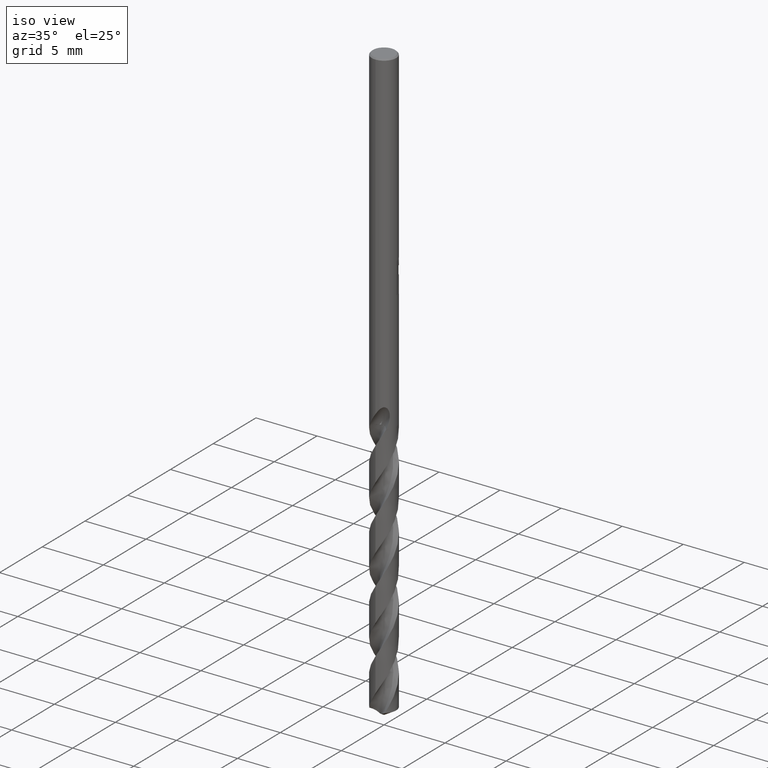
[diagram: clean part render]
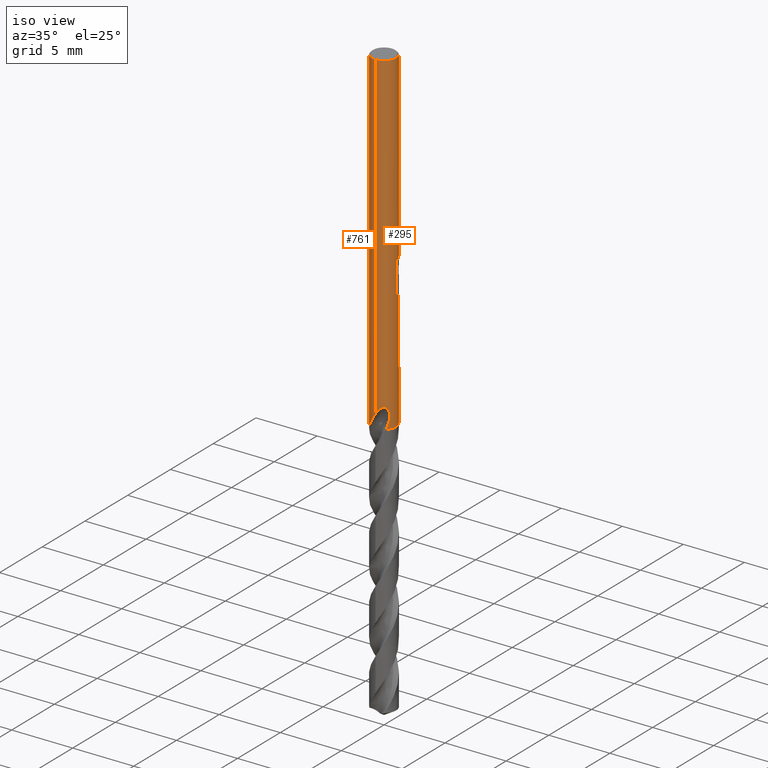
[diagram: same view with one multi-face feature highlighted, each face labeled with its STEP entity id]
A machine part, iso view. The highlighted faces form ONE feature: a constant-radius fillet chain: 2 tangent blend faces with common blend radius 1 mm. The faces share edges in the B-rep.
Their STEP definitions:
[1] entity #761 (Cylinder):
#303=EDGE_CURVE('',#657,#745,#836,.T.);
#327=EDGE_CURVE('',#709,#423,#862,.T.);
#353=EDGE_CURVE('',#673,#607,#891,.T.);
#355=EDGE_CURVE('',#699,#605,#893,.T.);
#409=VERTEX_POINT('',#953);
#423=VERTEX_POINT('',#967);
#431=VERTEX_POINT('',#975);
#455=EDGE_CURVE('',#643,#549,#1001,.T.);
#463=EDGE_CURVE('',#651,#609,#1010,.T.);
#471=VERTEX_POINT('',#1018);
#475=EDGE_CURVE('',#409,#699,#1022,.T.);
#481=VERTEX_POINT('',#1028);
#509=EDGE_CURVE('',#605,#725,#1058,.T.);
#527=EDGE_CURVE('',#409,#609,#1078,.T.);
#533=EDGE_CURVE('',#549,#673,#1085,.T.);
#549=VERTEX_POINT('',#1102);
#605=VERTEX_POINT('',#1162);
#607=VERTEX_POINT('',#1164);
#609=VERTEX_POINT('',#1166);
#643=VERTEX_POINT('',#1200);
#651=VERTEX_POINT('',#1208);
#657=VERTEX_POINT('',#1214);
#673=VERTEX_POINT('',#1233);
#685=EDGE_CURVE('',#431,#481,#1246,.T.);
#687=EDGE_CURVE('',#471,#657,#1248,.T.);
#699=VERTEX_POINT('',#1261);
#709=VERTEX_POINT('',#1273);
#725=VERTEX_POINT('',#1294);
#745=VERTEX_POINT('',#1317);
#747=EDGE_CURVE('',#745,#643,#1319,.T.);
#751=EDGE_CURVE('',#607,#651,#1324,.T.);
#761=ADVANCED_FACE('',(#1334),#1335,.T.);
#775=EDGE_CURVE('',#423,#471,#1350,.T.);
#781=EDGE_CURVE('',#481,#709,#1357,.T.);
#789=EDGE_CURVE('',#725,#431,#1365,.T.);
#836=LINE('',#1412,#1413);
#862=CIRCLE('',#2024,1.0);
#891=LINE('',#2280,#2281);
#893=LINE('',#2284,#2285);
#953=CARTESIAN_POINT('',(-0.634841489332144,-0.772642403329344,-27.4));
#967=CARTESIAN_POINT('',(-1.0,0.0,-15.3171221986971));
#975=CARTESIAN_POINT('',(5.06214303679778E-017,1.0,-16.0232688117743));
#1001=LINE('',#2970,#2971);
#1010=B_SPLINE_CURVE_WITH_KNOTS('',3,(#3142,#3143,#3144,#3145),.UNSPECIFIED.,.F.,.F.,(4,4),(0.0,0.56945863506427),.UNSPECIFIED.);
#1018=CARTESIAN_POINT('',(-1.0,0.0,-15.6123787413622));
#1022=B_SPLINE_CURVE_WITH_KNOTS('',3,(#3181,#3182,#3183,#3184,#3185,#3186,#3187,#3188,#3189,#3190,#3191,#3192,#3193,#3194,#3195,#3196,#3197,#3198,#3199,#3200,#3201,#3202,#3203,#3204,#3205,#3206,#3207,#3208),.UNSPECIFIED.,.F.,.F.,(4,2,2,2,2,2,2,2,2,2,2,2,2,4),(0.0,0.486315119149955,0.753502227558083,0.996053073942909,1.27815984182243,1.61675895999867,1.90796937706702,2.04078048043294,2.13789516683883,2.22982424761421,2.34648706572778,2.51720800066213,2.75988064639899,3.035387325814),.UNSPECIFIED.);
#1028=CARTESIAN_POINT('',(-0.486378944383072,0.873747974224136,-15.6432837483005));
#1058=CIRCLE('',#3709,1.0);
#1078=CIRCLE('',#3745,1.0);
#1085=B_SPLINE_CURVE_WITH_KNOTS('',3,(#3753,#3754,#3755,#3756,#3757,#3758,#3759,#3760,#3761,#3762,#3763,#3764,#3765,#3766,#3767,#3768,#3769),.UNSPECIFIED.,.F.,.F.,(4,3,2,2,2,2,2,4),(-0.19504411259458,0.0,0.19504411259458,0.39008822518916,0.780176450378319,1.166317916099,1.55245938181969,1.94231222037545),.UNSPECIFIED.);
#1102=CARTESIAN_POINT('',(-1.0,0.0,-17.7096916079355));
#1162=CARTESIAN_POINT('',(1.22460635382238E-016,-1.0,-0.100000000000001));
#1164=CARTESIAN_POINT('',(-3.65102560814443E-013,0.999999999999999,-26.3420152279177));
#1166=CARTESIAN_POINT('',(-0.696395247789617,0.717658455573428,-27.4));
#1200=CARTESIAN_POINT('',(-1.0,0.0,-17.2059077749364));
#1208=CARTESIAN_POINT('',(-0.813642163312234,0.581366003547324,-26.8574197756242));
#1214=CARTESIAN_POINT('',(0.0,1.0,-16.5000801551881));
#1233=CARTESIAN_POINT('',(1.0146208194845E-016,1.0,-18.0310253601033));
#1246=B_SPLINE_CURVE_WITH_KNOTS('',3,(#5876,#5877,#5878,#5879,#5880,#5881,#5882,#5883,#5884,#5885,#5886,#5887,#5888,#5889,#5890,#5891,#5892,#5893,#5894,#5895,#5896,#5897,#5898,#5899,#5900,#5901,#5902,#5903,#5904,#5905,#5906),.UNSPECIFIED.,.F.,.F.,(4,2,2,3,2,2,2,2,2,2,2,2,2,2,4),(-0.607233525241759,-0.303616762620879,-0.151808381310439,0.0,0.15180838131044,0.30361676262088,0.607233525241759,0.912218572818199,1.21720362039464,1.4895999723445,1.76199632429436,2.04336921409699,2.32474210389963,2.60611499370226,2.88748788350489),.UNSPECIFIED.);
#1248=B_SPLINE_CURVE_WITH_KNOTS('',3,(#5909,#5910,#5911,#5912,#5913,#5914,#5915,#5916,#5917,#5918,#5919,#5920,#5921,#5922,#5923,#5924,#5925,#5926,#5927,#5928,#5929,#5930,#5931),.UNSPECIFIED.,.F.,.F.,(4,3,2,2,2,2,2,2,2,2,4),(-0.137157507978025,0.0,0.137157507978026,0.274315015956052,0.548630031912103,0.964173413406938,1.37971679490177,1.68730627921483,1.99489576352788,2.33088352547496,2.66687128742204),.UNSPECIFIED.);
#1261=CARTESIAN_POINT('',(3.65546650024293E-013,-1.0,-26.3420152279177));
#1273=CARTESIAN_POINT('',(-0.562333990228013,0.82691020276342,-15.3171221986971));
#1294=CARTESIAN_POINT('',(0.0,1.0,-0.100000000000001));
#1317=CARTESIAN_POINT('',(1.19728058785816E-015,1.0,-16.7128911336578));
#1319=ELLIPSE('',#7149,1.11492843204286,1.0);
#1324=B_SPLINE_CURVE_WITH_KNOTS('',3,(#7155,#7156,#7157,#7158,#7159,#7160,#7161,#7162,#7163,#7164,#7165,#7166,#7167,#7168,#7169,#7170,#7171,#7172,#7173,#7174,#7175,#7176,#7177,#7178,#7179,#7180,#7181,#7182),.UNSPECIFIED.,.F.,.F.,(4,2,2,2,2,2,2,2,2,2,2,2,2,4),(0.0,0.486315119149953,0.753502227558069,0.996053073942924,1.27815984182254,1.61675895999886,1.90796937706729,2.04078048043324,2.13789516683916,2.22982424761455,2.34648706572807,2.51720800066145,2.75988064639575,3.03538732580812),.UNSPECIFIED.);
#1334=FACE_OUTER_BOUND('',#7562,.T.);
#1335=CYLINDRICAL_SURFACE('',#7563,1.0);
#1350=LINE('',#7775,#7776);
#1357=B_SPLINE_CURVE_WITH_KNOTS('',3,(#7946,#7947,#7948,#7949,#7950,#7951,#7952,#7953,#7954,#7955,#7956,#7957,#7958,#7959,#7960,#7961,#7962,#7963,#7964,#7965,#7966,#7967,#7968,#7969,#7970,#7971,#7972,#7973,#7974,#7975,#7976),.UNSPECIFIED.,.F.,.F.,(4,2,2,3,2,2,2,2,2,2,2,2,2,2,4),(-0.607233525241759,-0.303616762620879,-0.151808381310439,0.0,0.15180838131044,0.30361676262088,0.607233525241759,0.912218572818199,1.21720362039464,1.4895999723445,1.76199632429436,2.04336921409699,2.32474210389963,2.60611499370226,2.88748788350489),.UNSPECIFIED.);
#1365=LINE('',#8195,#8196);
#1412=CARTESIAN_POINT('',(-1.22460635382238E-016,1.0,-23.7));
#1413=VECTOR('',#8419,1.0);
#2024=AXIS2_PLACEMENT_3D('',#8437,#8438,#8439);
#2280=CARTESIAN_POINT('',(-1.22460635382238E-016,1.0,-23.7));
#2281=VECTOR('',#8472,1.0);
#2284=CARTESIAN_POINT('',(1.22460635382238E-016,-1.0,-23.7));
#2285=VECTOR('',#8473,1.0);
#2970=CARTESIAN_POINT('',(-1.0,0.0,-17.4607460005526));
#2971=VECTOR('',#8577,1.0);
#3142=CARTESIAN_POINT('',(-0.813642163364853,0.581366003473684,-26.8574197756531));
#3143=CARTESIAN_POINT('',(-0.781698120610799,0.6260728144976,-27.0391127552994));
#3144=CARTESIAN_POINT('',(-0.743260976586601,0.672181292216746,-27.2218533031689));
#3145=CARTESIAN_POINT('',(-0.696395247789617,0.717658455573428,-27.4));
#3181=CARTESIAN_POINT('',(-0.634841489332145,-0.772642403329344,-27.4));
#3182=CARTESIAN_POINT('',(-0.569063042017873,-0.826689252530226,-27.2620500893008));
#3183=CARTESIAN_POINT('',(-0.49362829051234,-0.874633404089495,-27.1332556092569));
#3184=CARTESIAN_POINT('',(-0.362092801182732,-0.933541954259275,-26.9178770775166));
#3185=CARTESIAN_POINT('',(-0.314580386880739,-0.950550046193102,-26.8417865859912));
#3186=CARTESIAN_POINT('',(-0.222521761345376,-0.975986377041126,-26.6943596287175));
#3187=CARTESIAN_POINT('',(-0.178375337692277,-0.984973036864506,-26.6236925386448));
#3188=CARTESIAN_POINT('',(-0.0827625185949405,-0.997918774791236,-26.4713148020854));
#3189=CARTESIAN_POINT('',(-0.0304842963187713,-1.00092673578298,-26.3883933091746));
#3190=CARTESIAN_POINT('',(0.0855723170221471,-0.998342364501833,-26.2111323335177));
#3191=CARTESIAN_POINT('',(0.154409605646612,-0.990700443091022,-26.1102704916496));
#3192=CARTESIAN_POINT('',(0.286703096553658,-0.960074782067612,-25.9447567655431));
#3193=CARTESIAN_POINT('',(0.359504089173723,-0.936937353257582,-25.8644634701456));
#3194=CARTESIAN_POINT('',(0.469917831565921,-0.883545652625182,-25.7889707559942));
#3195=CARTESIAN_POINT('',(0.50662148531637,-0.863304491822586,-25.7702412765686));
#3196=CARTESIAN_POINT('',(0.57094354101037,-0.821627317932716,-25.7558724674693));
#3197=CARTESIAN_POINT('',(0.597329698140652,-0.802644509769649,-25.7556222950202));
#3198=CARTESIAN_POINT('',(0.646478662183727,-0.763543132494086,-25.7682722977457));
#3199=CARTESIAN_POINT('',(0.667975306297854,-0.744656659894225,-25.7801191841257));
#3200=CARTESIAN_POINT('',(0.711726031081877,-0.703264339849075,-25.8171744441095));
#3201=CARTESIAN_POINT('',(0.731967618640897,-0.681812491565128,-25.844531566887));
#3202=CARTESIAN_POINT('',(0.773429215520865,-0.634971026278083,-25.919440448554));
#3203=CARTESIAN_POINT('',(0.793244481378834,-0.609464356749814,-25.9750020342022));
#3204=CARTESIAN_POINT('',(0.830491892501607,-0.55826918115183,-26.1304348067894));
#3205=CARTESIAN_POINT('',(0.843947813018679,-0.53647839181785,-26.2411252191962));
#3206=CARTESIAN_POINT('',(0.852491490643161,-0.522811338154952,-26.5055324757326));
#3207=CARTESIAN_POINT('',(0.846359061382845,-0.535577554342156,-26.6713376298636));
#3208=CARTESIAN_POINT('',(0.813642163312233,-0.581366003547325,-26.8574197756242));
#3709=AXIS2_PLACEMENT_3D('',#8614,#8615,#8616);
#3745=AXIS2_PLACEMENT_3D('',#8646,#8647,#8648);
#3753=CARTESIAN_POINT('',(-0.980444819587482,-0.196794196418672,-17.7240035705323));
#3754=CARTESIAN_POINT('',(-0.993565563062151,-0.131425574063137,-17.7145499063757));
#3755=CARTESIAN_POINT('',(-1.0,-0.0650147041981933,-17.7096916079355));
#3756=CARTESIAN_POINT('',(-1.0,0.0,-17.7096916079355));
#3757=CARTESIAN_POINT('',(-1.0,0.0650147041981933,-17.7096916079355));
#3758=CARTESIAN_POINT('',(-0.993565563062151,0.131425574063137,-17.7145499063757));
#3759=CARTESIAN_POINT('',(-0.967324076112812,0.262162818774206,-17.733457234689));
#3760=CARTESIAN_POINT('',(-0.947530815459635,0.326498668616294,-17.747459854512));
#3761=CARTESIAN_POINT('',(-0.870227269632897,0.510264153789291,-17.7981758412044));
#3762=CARTESIAN_POINT('',(-0.793890669672503,0.620514468200863,-17.8433674785199));
#3763=CARTESIAN_POINT('',(-0.619652273446457,0.794369949064209,-17.9231378507274));
#3764=CARTESIAN_POINT('',(-0.509393531502069,0.870757232476645,-17.9636894408171));
#3765=CARTESIAN_POINT('',(-0.264011144697287,0.973651943067932,-18.0190349224756));
#3766=CARTESIAN_POINT('',(-0.128694303528194,1.0,-18.0332668304406));
#3767=CARTESIAN_POINT('',(0.129931240206963,1.0,-18.0287623460241));
#3768=CARTESIAN_POINT('',(0.265840915073126,0.973193360312368,-18.0095124995587));
#3769=CARTESIAN_POINT('',(0.388686445156455,0.921370092499012,-17.9769707233872));
#5876=CARTESIAN_POINT('',(0.673478773298645,0.739206562414155,-14.8221013126891));
#5877=CARTESIAN_POINT('',(0.732898512196537,0.685070229084017,-14.8835921493418));
#5878=CARTESIAN_POINT('',(0.784035818772585,0.62377271486409,-14.9592044724041));
#5879=CARTESIAN_POINT('',(0.837072103961167,0.547961151775005,-15.0855800820537));
#5880=CARTESIAN_POINT('',(0.850964192131077,0.525559955949891,-15.1298681551343));
#5881=CARTESIAN_POINT('',(0.870113898944855,0.493209009232316,-15.2225766796322));
#5882=CARTESIAN_POINT('',(0.875400981188567,0.483397478410981,-15.2710392188166));
#5883=CARTESIAN_POINT('',(0.875400981188567,0.483397478410981,-15.3216420125868));
#5884=CARTESIAN_POINT('',(0.875400981188567,0.483397478410981,-15.3722448063569));
#5885=CARTESIAN_POINT('',(0.870113898944855,0.493209009232316,-15.4207073455414));
#5886=CARTESIAN_POINT('',(0.850964192131077,0.52555995594989,-15.5134158700393));
#5887=CARTESIAN_POINT('',(0.837072103961168,0.547961151775003,-15.5577039431199));
#5888=CARTESIAN_POINT('',(0.784035818772587,0.623772714864088,-15.6840795527694));
#5889=CARTESIAN_POINT('',(0.732898512196537,0.685070229084017,-15.7596918758318));
#5890=CARTESIAN_POINT('',(0.613791252299082,0.79358686755206,-15.8829506648866));
#5891=CARTESIAN_POINT('',(0.536550060182283,0.849736898708803,-15.9395969520149));
#5892=CARTESIAN_POINT('',(0.358230432856478,0.93894078865622,-16.0184933615078));
#5893=CARTESIAN_POINT('',(0.256934968912869,0.97176104029934,-16.0405166027747));
#5894=CARTESIAN_POINT('',(0.0668468131160956,1.00188618253226,-16.0405166027747));
#5895=CARTESIAN_POINT('',(-0.0291729907235004,1.00347676559166,-16.0225778316884));
#5896=CARTESIAN_POINT('',(-0.204783002825692,0.982792247679803,-15.9503317442107));
#5897=CARTESIAN_POINT('',(-0.284466038399353,0.961010291643699,-15.8961097710298));
#5898=CARTESIAN_POINT('',(-0.411816290198985,0.913875241964301,-15.7710754747411));
#5899=CARTESIAN_POINT('',(-0.467748305765433,0.88493728473904,-15.6909252580766));
#5900=CARTESIAN_POINT('',(-0.543025225108172,0.840848585319699,-15.5132567961665));
#5901=CARTESIAN_POINT('',(-0.562348199187247,0.826900539890295,-15.4154329758543));
#5902=CARTESIAN_POINT('',(-0.562348199187247,0.826900539890295,-15.2278510493192));
#5903=CARTESIAN_POINT('',(-0.543025225108173,0.840848585319698,-15.1300272290071));
#5904=CARTESIAN_POINT('',(-0.467748305765435,0.88493728473904,-14.952358767097));
#5905=CARTESIAN_POINT('',(-0.411816290198985,0.913875241964301,-14.8722085504325));
#5906=CARTESIAN_POINT('',(-0.34710899758635,0.937824793761926,-14.808678006266));
#5909=CARTESIAN_POINT('',(-0.991868233804212,-0.127269033036765,-15.6432304080176));
#5910=CARTESIAN_POINT('',(-0.996991542825211,-0.0873405548822711,-15.6248045831465));
#5911=CARTESIAN_POINT('',(-1.0,-0.0457191693260084,-15.6123787413622));
#5912=CARTESIAN_POINT('',(-1.0,0.0,-15.6123787413622));
#5913=CARTESIAN_POINT('',(-1.0,0.0457191693260086,-15.6123787413622));
#5914=CARTESIAN_POINT('',(-0.996991542825211,0.0873405548822711,-15.6248045831465));
#5915=CARTESIAN_POINT('',(-0.986744924783327,0.167197511190992,-15.6616562328894));
#5916=CARTESIAN_POINT('',(-0.979434144534593,0.205415348052975,-15.6861002379071));
#5917=CARTESIAN_POINT('',(-0.951341400725161,0.317646868302498,-15.7672870426517));
#5918=CARTESIAN_POINT('',(-0.924020105583603,0.388742546209082,-15.8312206041969));
#5919=CARTESIAN_POINT('',(-0.844278031743052,0.546366797465065,-15.9784418218004));
#5920=CARTESIAN_POINT('',(-0.776369883975864,0.641646115756596,-16.0749473668852));
#5921=CARTESIAN_POINT('',(-0.602121978922889,0.807408812091898,-16.2494661213731));
#5922=CARTESIAN_POINT('',(-0.495571162281771,0.877632351185902,-16.3275152387594));
#5923=CARTESIAN_POINT('',(-0.292974692954151,0.960645039763194,-16.4283413922073));
#5924=CARTESIAN_POINT('',(-0.190761951173311,0.987423878945487,-16.4650225267122));
#5925=CARTESIAN_POINT('',(0.0219808973918171,1.00544163480209,-16.507634003032));
#5926=CARTESIAN_POINT('',(0.132551011445553,0.996439830889215,-16.5134659835241));
#5927=CARTESIAN_POINT('',(0.340721948365817,0.94677963278928,-16.498632823894));
#5928=CARTESIAN_POINT('',(0.449793780127788,0.900432097113985,-16.4747387783549));
#5929=CARTESIAN_POINT('',(0.641563561285496,0.775556910410664,-16.4062859546221));
#5930=CARTESIAN_POINT('',(0.724482186930116,0.697113908182539,-16.3621919706298));
#5931=CARTESIAN_POINT('',(0.788520594587301,0.615008351091015,-16.3209506554054));
#7149=AXIS2_PLACEMENT_3D('',#8930,#8931,#8932);
#7155=CARTESIAN_POINT('',(0.634841489332145,0.772642403329344,-27.4));
#7156=CARTESIAN_POINT('',(0.569063042017873,0.826689252530226,-27.2620500893008));
#7157=CARTESIAN_POINT('',(0.493628290512342,0.874633404089495,-27.1332556092569));
#7158=CARTESIAN_POINT('',(0.362092801182733,0.933541954259275,-26.9178770775166));
#7159=CARTESIAN_POINT('',(0.314580386880741,0.950550046193102,-26.8417865859912));
#7160=CARTESIAN_POINT('',(0.222521761345367,0.975986377041129,-26.6943596287174));
#7161=CARTESIAN_POINT('',(0.178375337692258,0.984973036864508,-26.6236925386447));
#7162=CARTESIAN_POINT('',(0.0827625185949509,0.997918774791234,-26.4713148020854));
#7163=CARTESIAN_POINT('',(0.0304842963187761,1.00092673578298,-26.3883933091746));
#7164=CARTESIAN_POINT('',(-0.0855723170221472,0.998342364501833,-26.2111323335177));
#7165=CARTESIAN_POINT('',(-0.154409605646612,0.990700443091022,-26.1102704916496));
#7166=CARTESIAN_POINT('',(-0.286703096553659,0.960074782067612,-25.9447567655431));
#7167=CARTESIAN_POINT('',(-0.359504089173723,0.936937353257582,-25.8644634701456));
#7168=CARTESIAN_POINT('',(-0.469917831565922,0.883545652625182,-25.7889707559942));
#7169=CARTESIAN_POINT('',(-0.50662148531637,0.863304491822586,-25.7702412765686));
#7170=CARTESIAN_POINT('',(-0.570943541010371,0.821627317932715,-25.7558724674693));
#7171=CARTESIAN_POINT('',(-0.597329698140652,0.802644509769648,-25.7556222950202));
#7172=CARTESIAN_POINT('',(-0.64647866218372,0.763543132494091,-25.7682722977457));
#7173=CARTESIAN_POINT('',(-0.667975306297842,0.744656659894236,-25.7801191841257));
#7174=CARTESIAN_POINT('',(-0.711726031081881,0.70326433984907,-25.8171744441095));
#7175=CARTESIAN_POINT('',(-0.731967618640905,0.68181249156512,-25.844531566887));
#7176=CARTESIAN_POINT('',(-0.773429215520723,0.634971026278244,-25.9194404485537));
#7177=CARTESIAN_POINT('',(-0.793244481378741,0.609464356749943,-25.9750020342018));
#7178=CARTESIAN_POINT('',(-0.830491892501633,0.558269181151796,-26.1304348067895));
#7179=CARTESIAN_POINT('',(-0.843947813018682,0.536478391817844,-26.2411252191964));
#7180=CARTESIAN_POINT('',(-0.852491490643161,0.522811338154951,-26.5055324757326));
#7181=CARTESIAN_POINT('',(-0.846359061382845,0.535577554342156,-26.6713376298636));
#7182=CARTESIAN_POINT('',(-0.813642163312233,0.581366003547325,-26.8574197756242));
#7562=EDGE_LOOP('',(#8941,#8942,#8943,#8944,#8945,#8946,#8947,#8948,#8949,#8950,#8951,#8952,#8953,#8954,#8955,#8956,#8957));
#7563=AXIS2_PLACEMENT_3D('',#8958,#8959,#8960);
#7775=CARTESIAN_POINT('',(-1.0,0.0,-15.5078657761205));
#7776=VECTOR('',#8975,1.0);
#7946=CARTESIAN_POINT('',(0.673478773298645,0.739206562414155,-14.8221013126891));
#7947=CARTESIAN_POINT('',(0.732898512196537,0.685070229084017,-14.8835921493418));
#7948=CARTESIAN_POINT('',(0.784035818772585,0.62377271486409,-14.9592044724041));
#7949=CARTESIAN_POINT('',(0.837072103961167,0.547961151775005,-15.0855800820537));
#7950=CARTESIAN_POINT('',(0.850964192131077,0.525559955949891,-15.1298681551343));
#7951=CARTESIAN_POINT('',(0.870113898944855,0.493209009232316,-15.2225766796322));
#7952=CARTESIAN_POINT('',(0.875400981188567,0.483397478410981,-15.2710392188166));
#7953=CARTESIAN_POINT('',(0.875400981188567,0.483397478410981,-15.3216420125868));
#7954=CARTESIAN_POINT('',(0.875400981188567,0.483397478410981,-15.3722448063569));
#7955=CARTESIAN_POINT('',(0.870113898944855,0.493209009232316,-15.4207073455414));
#7956=CARTESIAN_POINT('',(0.850964192131077,0.52555995594989,-15.5134158700393));
#7957=CARTESIAN_POINT('',(0.837072103961168,0.547961151775003,-15.5577039431199));
#7958=CARTESIAN_POINT('',(0.784035818772587,0.623772714864088,-15.6840795527694));
#7959=CARTESIAN_POINT('',(0.732898512196537,0.685070229084017,-15.7596918758318));
#7960=CARTESIAN_POINT('',(0.613791252299082,0.79358686755206,-15.8829506648866));
#7961=CARTESIAN_POINT('',(0.536550060182283,0.849736898708803,-15.9395969520149));
#7962=CARTESIAN_POINT('',(0.358230432856478,0.93894078865622,-16.0184933615078));
#7963=CARTESIAN_POINT('',(0.256934968912869,0.97176104029934,-16.0405166027747));
#7964=CARTESIAN_POINT('',(0.0668468131160956,1.00188618253226,-16.0405166027747));
#7965=CARTESIAN_POINT('',(-0.0291729907235004,1.00347676559166,-16.0225778316884));
#7966=CARTESIAN_POINT('',(-0.204783002825692,0.982792247679803,-15.9503317442107));
#7967=CARTESIAN_POINT('',(-0.284466038399353,0.961010291643699,-15.8961097710298));
#7968=CARTESIAN_POINT('',(-0.411816290198985,0.913875241964301,-15.7710754747411));
#7969=CARTESIAN_POINT('',(-0.467748305765433,0.88493728473904,-15.6909252580766));
#7970=CARTESIAN_POINT('',(-0.543025225108172,0.840848585319699,-15.5132567961665));
#7971=CARTESIAN_POINT('',(-0.562348199187247,0.826900539890295,-15.4154329758543));
#7972=CARTESIAN_POINT('',(-0.562348199187247,0.826900539890295,-15.2278510493192));
#7973=CARTESIAN_POINT('',(-0.543025225108173,0.840848585319698,-15.1300272290071));
#7974=CARTESIAN_POINT('',(-0.467748305765435,0.88493728473904,-14.952358767097));
#7975=CARTESIAN_POINT('',(-0.411816290198985,0.913875241964301,-14.8722085504325));
#7976=CARTESIAN_POINT('',(-0.34710899758635,0.937824793761926,-14.808678006266));
#8195=CARTESIAN_POINT('',(-1.22460635382238E-016,1.0,-23.7));
#8196=VECTOR('',#8986,1.0);
#8419=DIRECTION('',(0.0,0.0,-1.0));
#8437=CARTESIAN_POINT('',(0.0,0.0,-15.3171221986971));
#8438=DIRECTION('',(0.0,-0.0,1.0));
#8439=DIRECTION('',(0.0,1.0,0.0));
#8472=DIRECTION('',(0.0,0.0,-1.0));
#8473=DIRECTION('',(-0.0,-0.0,1.0));
#8577=DIRECTION('',(0.0,0.0,-1.0));
#8614=CARTESIAN_POINT('',(0.0,0.0,-0.100000000000001));
#8615=DIRECTION('',(0.0,0.0,-1.0));
#8616=DIRECTION('',(0.0,1.0,0.0));
#8646=CARTESIAN_POINT('',(0.0,0.0,-27.4));
#8647=DIRECTION('',(0.0,0.0,-1.0));
#8648=DIRECTION('',(0.0,1.0,0.0));
#8930=CARTESIAN_POINT('',(0.0,0.0,-16.7128911336578));
#8931=DIRECTION('',(-0.442195774284071,0.0,0.896918556617774));
#8932=DIRECTION('',(0.896918556617774,-0.0,0.442195774284071));
#8941=ORIENTED_EDGE('',*,*,#789,.T.);
#8942=ORIENTED_EDGE('',*,*,#685,.T.);
#8943=ORIENTED_EDGE('',*,*,#781,.T.);
#8944=ORIENTED_EDGE('',*,*,#327,.T.);
#8945=ORIENTED_EDGE('',*,*,#775,.T.);
#8946=ORIENTED_EDGE('',*,*,#687,.T.);
#8947=ORIENTED_EDGE('',*,*,#303,.T.);
#8948=ORIENTED_EDGE('',*,*,#747,.T.);
#8949=ORIENTED_EDGE('',*,*,#455,.T.);
#8950=ORIENTED_EDGE('',*,*,#533,.T.);
#8951=ORIENTED_EDGE('',*,*,#353,.T.);
#8952=ORIENTED_EDGE('',*,*,#751,.T.);
#8953=ORIENTED_EDGE('',*,*,#463,.T.);
#8954=ORIENTED_EDGE('',*,*,#527,.F.);
#8955=ORIENTED_EDGE('',*,*,#475,.T.);
#8956=ORIENTED_EDGE('',*,*,#355,.T.);
#8957=ORIENTED_EDGE('',*,*,#509,.T.);
#8958=CARTESIAN_POINT('',(0.0,0.0,-23.7));
#8959=DIRECTION('',(-0.0,-0.0,1.0));
#8960=DIRECTION('',(0.0,1.0,0.0));
#8975=DIRECTION('',(0.0,0.0,-1.0));
#8986=DIRECTION('',(0.0,0.0,-1.0));
[2] entity #295 (Cylinder):
#295=ADVANCED_FACE('',(#826),#827,.T.);
#301=VERTEX_POINT('',#834);
#317=VERTEX_POINT('',#851);
#335=EDGE_CURVE('',#769,#607,#872,.T.);
#337=EDGE_CURVE('',#655,#301,#874,.T.);
#347=EDGE_CURVE('',#317,#431,#885,.T.);
#353=EDGE_CURVE('',#673,#607,#891,.T.);
#355=EDGE_CURVE('',#699,#605,#893,.T.);
#359=EDGE_CURVE('',#421,#655,#897,.T.);
#375=EDGE_CURVE('',#673,#421,#915,.T.);
#421=VERTEX_POINT('',#965);
#431=VERTEX_POINT('',#975);
#469=VERTEX_POINT('',#1016);
#477=EDGE_CURVE('',#699,#573,#1024,.T.);
#479=EDGE_CURVE('',#301,#469,#1026,.T.);
#501=EDGE_CURVE('',#573,#635,#1049,.T.);
#573=VERTEX_POINT('',#1128);
#595=EDGE_CURVE('',#659,#317,#1151,.T.);
#605=VERTEX_POINT('',#1162);
#607=VERTEX_POINT('',#1164);
#633=EDGE_CURVE('',#469,#659,#1190,.T.);
#635=VERTEX_POINT('',#1192);
#645=EDGE_CURVE('',#769,#635,#1202,.T.);
#655=VERTEX_POINT('',#1212);
#659=VERTEX_POINT('',#1216);
#673=VERTEX_POINT('',#1233);
#697=EDGE_CURVE('',#725,#605,#1259,.T.);
#699=VERTEX_POINT('',#1261);
#725=VERTEX_POINT('',#1294);
#769=VERTEX_POINT('',#1344);
#789=EDGE_CURVE('',#725,#431,#1365,.T.);
#826=FACE_OUTER_BOUND('',#1400,.T.);
#827=CYLINDRICAL_SURFACE('',#1401,1.0);
#834=CARTESIAN_POINT('',(0.873560781758956,0.486715071240538,-17.7587351791531));
#851=CARTESIAN_POINT('',(0.799431726384364,0.600756951562039,-15.000000276873));
#872=B_SPLINE_CURVE_WITH_KNOTS('',3,(#2036,#2037,#2038,#2039,#2040,#2041,#2042,#2043,#2044,#2045,#2046,#2047,#2048,#2049,#2050,#2051,#2052,#2053,#2054,#2055,#2056,#2057,#2058,#2059,#2060,#2061,#2062,#2063),.UNSPECIFIED.,.F.,.F.,(4,2,2,2,2,2,2,2,2,2,2,2,2,4),(0.0,0.486315119149953,0.753502227558069,0.996053073942924,1.27815984182254,1.61675895999886,1.90796937706729,2.04078048043324,2.13789516683916,2.22982424761455,2.34648706572807,2.51720800066145,2.75988064639575,3.03538732580812),.UNSPECIFIED.);
#874=LINE('',#2066,#2067);
#885=B_SPLINE_CURVE_WITH_KNOTS('',3,(#2081,#2082,#2083,#2084,#2085,#2086,#2087,#2088,#2089,#2090,#2091,#2092,#2093,#2094,#2095,#2096,#2097,#2098,#2099,#2100,#2101,#2102,#2103,#2104,#2105,#2106,#2107,#2108,#2109,#2110,#2111),.UNSPECIFIED.,.F.,.F.,(4,2,2,3,2,2,2,2,2,2,2,2,2,2,4),(-0.607233525241759,-0.303616762620879,-0.151808381310439,0.0,0.15180838131044,0.30361676262088,0.607233525241759,0.912218572818199,1.21720362039464,1.4895999723445,1.76199632429436,2.04336921409699,2.32474210389963,2.60611499370226,2.88748788350489),.UNSPECIFIED.);
#891=LINE('',#2280,#2281);
#893=LINE('',#2284,#2285);
#897=ELLIPSE('',#2291,3.04799457336977,1.0);
#915=B_SPLINE_CURVE_WITH_KNOTS('',3,(#2325,#2326,#2327,#2328,#2329,#2330,#2331,#2332,#2333,#2334,#2335,#2336,#2337,#2338,#2339,#2340,#2341),.UNSPECIFIED.,.F.,.F.,(4,3,2,2,2,2,2,4),(-0.19504411259458,0.0,0.19504411259458,0.39008822518916,0.780176450378319,1.166317916099,1.55245938181969,1.94231222037545),.UNSPECIFIED.);
#965=CARTESIAN_POINT('',(0.29010312703583,0.956995389583478,-17.9998328990228));
#975=CARTESIAN_POINT('',(5.06214303679778E-017,1.0,-16.0232688117743));
#1016=CARTESIAN_POINT('',(1.0,0.0,-17.6655479121829));
#1024=B_SPLINE_CURVE_WITH_KNOTS('',3,(#3211,#3212,#3213,#3214,#3215,#3216,#3217,#3218,#3219,#3220,#3221,#3222,#3223,#3224,#3225,#3226,#3227,#3228,#3229,#3230,#3231,#3232,#3233,#3234,#3235,#3236,#3237,#3238),.UNSPECIFIED.,.F.,.F.,(4,2,2,2,2,2,2,2,2,2,2,2,2,4),(0.0,0.486315119149955,0.753502227558083,0.996053073942909,1.27815984182243,1.61675895999867,1.90796937706702,2.04078048043294,2.13789516683883,2.22982424761421,2.34648706572778,2.51720800066213,2.75988064639899,3.035387325814),.UNSPECIFIED.);
#1026=B_SPLINE_CURVE_WITH_KNOTS('',3,(#3241,#3242,#3243,#3244,#3245,#3246,#3247,#3248,#3249,#3250),.UNSPECIFIED.,.F.,.F.,(4,2,2,2,4),(2.33216506919185,2.72360547369509,2.91932567594671,3.11504587819833,3.31076608044995),.UNSPECIFIED.);
#1049=B_SPLINE_CURVE_WITH_KNOTS('',3,(#3695,#3696,#3697,#3698),.UNSPECIFIED.,.F.,.F.,(4,4),(0.0,0.569458635064343),.UNSPECIFIED.);
#1128=CARTESIAN_POINT('',(0.813642163312234,-0.581366003547324,-26.8574197756242));
#1151=B_SPLINE_CURVE_WITH_KNOTS('',3,(#4854,#4855,#4856,#4857,#4858,#4859,#4860,#4861,#4862,#4863),.UNSPECIFIED.,.F.,.F.,(4,2,2,2,4),(2.91932566866396,3.11504587074916,3.31076607283436,3.50648627491957,3.89792667908997),.UNSPECIFIED.);
#1162=CARTESIAN_POINT('',(1.22460635382238E-016,-1.0,-0.100000000000001));
#1164=CARTESIAN_POINT('',(-3.65102560814443E-013,0.999999999999999,-26.3420152279177));
#1190=LINE('',#5151,#5152);
#1192=CARTESIAN_POINT('',(0.696395247789617,-0.717658455573428,-27.4));
#1202=CIRCLE('',#5167,1.0);
#1212=CARTESIAN_POINT('',(0.873560781758957,0.486715071240535,-16.3198931596091));
#1216=CARTESIAN_POINT('',(1.0,0.0,-15.1396662235831));
#1233=CARTESIAN_POINT('',(1.0146208194845E-016,1.0,-18.0310253601033));
#1259=CIRCLE('',#5951,1.0);
#1261=CARTESIAN_POINT('',(3.65546650024293E-013,-1.0,-26.3420152279177));
#1294=CARTESIAN_POINT('',(0.0,1.0,-0.100000000000001));
#1344=CARTESIAN_POINT('',(0.634841489332145,0.772642403329344,-27.4));
#1365=LINE('',#8195,#8196);
#1400=EDGE_LOOP('',(#8393,#8394,#8395,#8396,#8397,#8398,#8399,#8400,#8401,#8402,#8403,#8404,#8405,#8406,#8407));
#1401=AXIS2_PLACEMENT_3D('',#8408,#8409,#8410);
#2036=CARTESIAN_POINT('',(0.634841489332145,0.772642403329344,-27.4));
#2037=CARTESIAN_POINT('',(0.569063042017873,0.826689252530226,-27.2620500893008));
#2038=CARTESIAN_POINT('',(0.493628290512342,0.874633404089495,-27.1332556092569));
#2039=CARTESIAN_POINT('',(0.362092801182733,0.933541954259275,-26.9178770775166));
#2040=CARTESIAN_POINT('',(0.314580386880741,0.950550046193102,-26.8417865859912));
#2041=CARTESIAN_POINT('',(0.222521761345367,0.975986377041129,-26.6943596287174));
#2042=CARTESIAN_POINT('',(0.178375337692258,0.984973036864508,-26.6236925386447));
#2043=CARTESIAN_POINT('',(0.0827625185949509,0.997918774791234,-26.4713148020854));
#2044=CARTESIAN_POINT('',(0.0304842963187761,1.00092673578298,-26.3883933091746));
#2045=CARTESIAN_POINT('',(-0.0855723170221472,0.998342364501833,-26.2111323335177));
#2046=CARTESIAN_POINT('',(-0.154409605646612,0.990700443091022,-26.1102704916496));
#2047=CARTESIAN_POINT('',(-0.286703096553659,0.960074782067612,-25.9447567655431));
#2048=CARTESIAN_POINT('',(-0.359504089173723,0.936937353257582,-25.8644634701456));
#2049=CARTESIAN_POINT('',(-0.469917831565922,0.883545652625182,-25.7889707559942));
#2050=CARTESIAN_POINT('',(-0.50662148531637,0.863304491822586,-25.7702412765686));
#2051=CARTESIAN_POINT('',(-0.570943541010371,0.821627317932715,-25.7558724674693));
#2052=CARTESIAN_POINT('',(-0.597329698140652,0.802644509769648,-25.7556222950202));
#2053=CARTESIAN_POINT('',(-0.64647866218372,0.763543132494091,-25.7682722977457));
#2054=CARTESIAN_POINT('',(-0.667975306297842,0.744656659894236,-25.7801191841257));
#2055=CARTESIAN_POINT('',(-0.711726031081881,0.70326433984907,-25.8171744441095));
#2056=CARTESIAN_POINT('',(-0.731967618640905,0.68181249156512,-25.844531566887));
#2057=CARTESIAN_POINT('',(-0.773429215520723,0.634971026278244,-25.9194404485537));
#2058=CARTESIAN_POINT('',(-0.793244481378741,0.609464356749943,-25.9750020342018));
#2059=CARTESIAN_POINT('',(-0.830491892501633,0.558269181151796,-26.1304348067895));
#2060=CARTESIAN_POINT('',(-0.843947813018682,0.536478391817844,-26.2411252191964));
#2061=CARTESIAN_POINT('',(-0.852491490643161,0.522811338154951,-26.5055324757326));
#2062=CARTESIAN_POINT('',(-0.846359061382845,0.535577554342156,-26.6713376298636));
#2063=CARTESIAN_POINT('',(-0.813642163312233,0.581366003547325,-26.8574197756242));
#2066=CARTESIAN_POINT('',(0.873560781758957,0.486715071240535,-17.0393141693811));
#2067=VECTOR('',#8459,1.0);
#2081=CARTESIAN_POINT('',(0.673478773298645,0.739206562414155,-14.8221013126891));
#2082=CARTESIAN_POINT('',(0.732898512196537,0.685070229084017,-14.8835921493418));
#2083=CARTESIAN_POINT('',(0.784035818772585,0.62377271486409,-14.9592044724041));
#2084=CARTESIAN_POINT('',(0.837072103961167,0.547961151775005,-15.0855800820537));
#2085=CARTESIAN_POINT('',(0.850964192131077,0.525559955949891,-15.1298681551343));
#2086=CARTESIAN_POINT('',(0.870113898944855,0.493209009232316,-15.2225766796322));
#2087=CARTESIAN_POINT('',(0.875400981188567,0.483397478410981,-15.2710392188166));
#2088=CARTESIAN_POINT('',(0.875400981188567,0.483397478410981,-15.3216420125868));
#2089=CARTESIAN_POINT('',(0.875400981188567,0.483397478410981,-15.3722448063569));
#2090=CARTESIAN_POINT('',(0.870113898944855,0.493209009232316,-15.4207073455414));
#2091=CARTESIAN_POINT('',(0.850964192131077,0.52555995594989,-15.5134158700393));
#2092=CARTESIAN_POINT('',(0.837072103961168,0.547961151775003,-15.5577039431199));
#2093=CARTESIAN_POINT('',(0.784035818772587,0.623772714864088,-15.6840795527694));
#2094=CARTESIAN_POINT('',(0.732898512196537,0.685070229084017,-15.7596918758318));
#2095=CARTESIAN_POINT('',(0.613791252299082,0.79358686755206,-15.8829506648866));
#2096=CARTESIAN_POINT('',(0.536550060182283,0.849736898708803,-15.9395969520149));
#2097=CARTESIAN_POINT('',(0.358230432856478,0.93894078865622,-16.0184933615078));
#2098=CARTESIAN_POINT('',(0.256934968912869,0.97176104029934,-16.0405166027747));
#2099=CARTESIAN_POINT('',(0.0668468131160956,1.00188618253226,-16.0405166027747));
#2100=CARTESIAN_POINT('',(-0.0291729907235004,1.00347676559166,-16.0225778316884));
#2101=CARTESIAN_POINT('',(-0.204783002825692,0.982792247679803,-15.9503317442107));
#2102=CARTESIAN_POINT('',(-0.284466038399353,0.961010291643699,-15.8961097710298));
#2103=CARTESIAN_POINT('',(-0.411816290198985,0.913875241964301,-15.7710754747411));
#2104=CARTESIAN_POINT('',(-0.467748305765433,0.88493728473904,-15.6909252580766));
#2105=CARTESIAN_POINT('',(-0.543025225108172,0.840848585319699,-15.5132567961665));
#2106=CARTESIAN_POINT('',(-0.562348199187247,0.826900539890295,-15.4154329758543));
#2107=CARTESIAN_POINT('',(-0.562348199187247,0.826900539890295,-15.2278510493192));
#2108=CARTESIAN_POINT('',(-0.543025225108173,0.840848585319698,-15.1300272290071));
#2109=CARTESIAN_POINT('',(-0.467748305765435,0.88493728473904,-14.952358767097));
#2110=CARTESIAN_POINT('',(-0.411816290198985,0.913875241964301,-14.8722085504325));
#2111=CARTESIAN_POINT('',(-0.34710899758635,0.937824793761926,-14.808678006266));
#2280=CARTESIAN_POINT('',(-1.22460635382238E-016,1.0,-23.7));
#2281=VECTOR('',#8472,1.0);
#2284=CARTESIAN_POINT('',(1.22460635382238E-016,-1.0,-23.7));
#2285=VECTOR('',#8473,1.0);
#2291=AXIS2_PLACEMENT_3D('',#8477,#8478,#8479);
#2325=CARTESIAN_POINT('',(-0.980444819587482,-0.196794196418672,-17.7240035705323));
#2326=CARTESIAN_POINT('',(-0.993565563062151,-0.131425574063137,-17.7145499063757));
#2327=CARTESIAN_POINT('',(-1.0,-0.0650147041981933,-17.7096916079355));
#2328=CARTESIAN_POINT('',(-1.0,0.0,-17.7096916079355));
#2329=CARTESIAN_POINT('',(-1.0,0.0650147041981933,-17.7096916079355));
#2330=CARTESIAN_POINT('',(-0.993565563062151,0.131425574063137,-17.7145499063757));
#2331=CARTESIAN_POINT('',(-0.967324076112812,0.262162818774206,-17.733457234689));
#2332=CARTESIAN_POINT('',(-0.947530815459635,0.326498668616294,-17.747459854512));
#2333=CARTESIAN_POINT('',(-0.870227269632897,0.510264153789291,-17.7981758412044));
#2334=CARTESIAN_POINT('',(-0.793890669672503,0.620514468200863,-17.8433674785199));
#2335=CARTESIAN_POINT('',(-0.619652273446457,0.794369949064209,-17.9231378507274));
#2336=CARTESIAN_POINT('',(-0.509393531502069,0.870757232476645,-17.9636894408171));
#2337=CARTESIAN_POINT('',(-0.264011144697287,0.973651943067932,-18.0190349224756));
#2338=CARTESIAN_POINT('',(-0.128694303528194,1.0,-18.0332668304406));
#2339=CARTESIAN_POINT('',(0.129931240206963,1.0,-18.0287623460241));
#2340=CARTESIAN_POINT('',(0.265840915073126,0.973193360312368,-18.0095124995587));
#2341=CARTESIAN_POINT('',(0.388686445156455,0.921370092499012,-17.9769707233872));
#3211=CARTESIAN_POINT('',(-0.634841489332145,-0.772642403329344,-27.4));
#3212=CARTESIAN_POINT('',(-0.569063042017873,-0.826689252530226,-27.2620500893008));
#3213=CARTESIAN_POINT('',(-0.49362829051234,-0.874633404089495,-27.1332556092569));
#3214=CARTESIAN_POINT('',(-0.362092801182732,-0.933541954259275,-26.9178770775166));
#3215=CARTESIAN_POINT('',(-0.314580386880739,-0.950550046193102,-26.8417865859912));
#3216=CARTESIAN_POINT('',(-0.222521761345376,-0.975986377041126,-26.6943596287175));
#3217=CARTESIAN_POINT('',(-0.178375337692277,-0.984973036864506,-26.6236925386448));
#3218=CARTESIAN_POINT('',(-0.0827625185949405,-0.997918774791236,-26.4713148020854));
#3219=CARTESIAN_POINT('',(-0.0304842963187713,-1.00092673578298,-26.3883933091746));
#3220=CARTESIAN_POINT('',(0.0855723170221471,-0.998342364501833,-26.2111323335177));
#3221=CARTESIAN_POINT('',(0.154409605646612,-0.990700443091022,-26.1102704916496));
#3222=CARTESIAN_POINT('',(0.286703096553658,-0.960074782067612,-25.9447567655431));
#3223=CARTESIAN_POINT('',(0.359504089173723,-0.936937353257582,-25.8644634701456));
#3224=CARTESIAN_POINT('',(0.469917831565921,-0.883545652625182,-25.7889707559942));
#3225=CARTESIAN_POINT('',(0.50662148531637,-0.863304491822586,-25.7702412765686));
#3226=CARTESIAN_POINT('',(0.57094354101037,-0.821627317932716,-25.7558724674693));
#3227=CARTESIAN_POINT('',(0.597329698140652,-0.802644509769649,-25.7556222950202));
#3228=CARTESIAN_POINT('',(0.646478662183727,-0.763543132494086,-25.7682722977457));
#3229=CARTESIAN_POINT('',(0.667975306297854,-0.744656659894225,-25.7801191841257));
#3230=CARTESIAN_POINT('',(0.711726031081877,-0.703264339849075,-25.8171744441095));
#3231=CARTESIAN_POINT('',(0.731967618640897,-0.681812491565128,-25.844531566887));
#3232=CARTESIAN_POINT('',(0.773429215520865,-0.634971026278083,-25.919440448554));
#3233=CARTESIAN_POINT('',(0.793244481378834,-0.609464356749814,-25.9750020342022));
#3234=CARTESIAN_POINT('',(0.830491892501607,-0.55826918115183,-26.1304348067894));
#3235=CARTESIAN_POINT('',(0.843947813018679,-0.53647839181785,-26.2411252191962));
#3236=CARTESIAN_POINT('',(0.852491490643161,-0.522811338154952,-26.5055324757326));
#3237=CARTESIAN_POINT('',(0.846359061382845,-0.535577554342156,-26.6713376298636));
#3238=CARTESIAN_POINT('',(0.813642163312233,-0.581366003547325,-26.8574197756242));
#3241=CARTESIAN_POINT('',(0.707941104621816,0.70627147215985,-17.8553307543223));
#3242=CARTESIAN_POINT('',(0.794704030664111,0.619303437737102,-17.8113555199326));
#3243=CARTESIAN_POINT('',(0.870512243238349,0.509653292290257,-17.7622271716788));
#3244=CARTESIAN_POINT('',(0.947501743465762,0.326534417694543,-17.7069216720578));
#3245=CARTESIAN_POINT('',(0.967267009322787,0.262361726538396,-17.6916185196515));
#3246=CARTESIAN_POINT('',(0.993523469836628,0.131720367495061,-17.6709042323927));
#3247=CARTESIAN_POINT('',(1.0,0.0652400674172064,-17.6655479121829));
#3248=CARTESIAN_POINT('',(1.0,-0.0652400674172064,-17.6655479121829));
#3249=CARTESIAN_POINT('',(0.993523469836628,-0.131720367495061,-17.6709042323927));
#3250=CARTESIAN_POINT('',(0.980395239579707,-0.197041047016728,-17.6812613760221));
#3695=CARTESIAN_POINT('',(0.813642163364853,-0.581366003473684,-26.8574197756531));
#3696=CARTESIAN_POINT('',(0.781698120610795,-0.626072814497606,-27.0391127552994));
#3697=CARTESIAN_POINT('',(0.743260976586598,-0.672181292216747,-27.2218533031689));
#3698=CARTESIAN_POINT('',(0.696395247789617,-0.717658455573426,-27.4));
#4854=CARTESIAN_POINT('',(0.980395239623956,-0.197041046796564,-15.1239527595616));
#4855=CARTESIAN_POINT('',(0.99352346984752,-0.131720367364932,-15.1343099033138));
#4856=CARTESIAN_POINT('',(1.0,-0.0652400673617343,-15.1396662235831));
#4857=CARTESIAN_POINT('',(1.0,0.065240067361734,-15.1396662235831));
#4858=CARTESIAN_POINT('',(0.99352346984752,0.131720367364932,-15.1343099033138));
#4859=CARTESIAN_POINT('',(0.967267009400393,0.262361726228194,-15.1135956158094));
#4860=CARTESIAN_POINT('',(0.947501743599132,0.326534417278908,-15.0982924632162));
#4861=CARTESIAN_POINT('',(0.870512243641438,0.509653291528352,-15.0429869628057));
#4862=CARTESIAN_POINT('',(0.794704031385602,0.619303436703265,-14.9938586136994));
#4863=CARTESIAN_POINT('',(0.707941105883175,0.70627147089551,-14.9498833781179));
#5151=CARTESIAN_POINT('',(1.0,0.0,-16.4026070677437));
#5152=VECTOR('',#8745,1.0);
#5167=AXIS2_PLACEMENT_3D('',#8747,#8748,#8749);
#5951=AXIS2_PLACEMENT_3D('',#8805,#8806,#8807);
#8195=CARTESIAN_POINT('',(-1.22460635382238E-016,1.0,-23.7));
#8196=VECTOR('',#8986,1.0);
#8393=ORIENTED_EDGE('',*,*,#789,.F.);
#8394=ORIENTED_EDGE('',*,*,#697,.T.);
#8395=ORIENTED_EDGE('',*,*,#355,.F.);
#8396=ORIENTED_EDGE('',*,*,#477,.T.);
#8397=ORIENTED_EDGE('',*,*,#501,.T.);
#8398=ORIENTED_EDGE('',*,*,#645,.F.);
#8399=ORIENTED_EDGE('',*,*,#335,.T.);
#8400=ORIENTED_EDGE('',*,*,#353,.F.);
#8401=ORIENTED_EDGE('',*,*,#375,.T.);
#8402=ORIENTED_EDGE('',*,*,#359,.T.);
#8403=ORIENTED_EDGE('',*,*,#337,.T.);
#8404=ORIENTED_EDGE('',*,*,#479,.T.);
#8405=ORIENTED_EDGE('',*,*,#633,.T.);
#8406=ORIENTED_EDGE('',*,*,#595,.T.);
#8407=ORIENTED_EDGE('',*,*,#347,.T.);
#8408=CARTESIAN_POINT('',(0.0,0.0,-23.7));
#8409=DIRECTION('',(-0.0,-0.0,1.0));
#8410=DIRECTION('',(0.0,1.0,0.0));
#8459=DIRECTION('',(0.0,0.0,-1.0));
#8472=DIRECTION('',(0.0,0.0,-1.0));
#8473=DIRECTION('',(-0.0,-0.0,1.0));
#8477=CARTESIAN_POINT('',(0.0,0.0,-18.8351219173269));
#8478=DIRECTION('',(0.944648353914092,0.0,-0.328084573619969));
#8479=DIRECTION('',(0.328084573619968,-0.0,0.944648353914092));
#8745=DIRECTION('',(-0.0,-0.0,1.0));
#8747=CARTESIAN_POINT('',(0.0,0.0,-27.4));
#8748=DIRECTION('',(0.0,0.0,-1.0));
#8749=DIRECTION('',(0.0,1.0,0.0));
#8805=CARTESIAN_POINT('',(0.0,0.0,-0.100000000000001));
#8806=DIRECTION('',(0.0,0.0,-1.0));
#8807=DIRECTION('',(0.0,1.0,0.0));
#8986=DIRECTION('',(0.0,0.0,-1.0));